MODEL slx_ab2421cea99f
KIND model
CONFIG AbsTol = auto
CONFIG EnableMultiTasking = off
CONFIG FixedStep = auto
CONFIG MaxStep = auto
CONFIG MinStep = auto
CONFIG RelTol = 1e-3
CONFIG SampleTimeConstraint = Unconstrained
CONFIG SolverName = VariableStepAuto
CONFIG StartTime = 0.0
CONFIG StopTime = 15
BLOCK [Lookup_n-D] 2-D Lookup Table
  BreakpointsForDimension1 = lut.trqLUT
  BreakpointsForDimension2 = lut.speedLUT
  InputPortMap = u0,u1
  InternalRulePriority = Speed
  RndMeth = Simplest
  Table = lut.idLUT
BLOCK [Lookup_n-D] 2-D Lookup Table1
  BreakpointsForDimension1 = lut.trqLUT
  BreakpointsForDimension2 = lut.speedLUT
  InputPortMap = u0,u1
  InternalRulePriority = Speed
  RndMeth = Simplest
  Table = lut.iqLUT
BLOCK [Constant] CONTROL MODE
  NameLocation = top
BLOCK [ComboBox] Combo Box
  LabelPosition = Hide
  SelectedLabel = Speed CL
BLOCK [Constant] Constant
  Value = 0
BLOCK [Constant] Constant1
BLOCK [Constant] Constant3
  Value = 0
BLOCK [Constant] Constant4
BLOCK [Constant] Constant6
  NameLocation = top
  Value = 2
BLOCK [Constant] Constant7
  NameLocation = top
  Value = 0
BLOCK [Constant] Constant9
BLOCK [Demux] Demux
  NameLocation = top
  Outputs = 2
BLOCK [Demux] Demux1
BLOCK [Demux] Demux2
  Outputs = 2
BLOCK [Constant] Dynamic PI current
  Value = 3
BLOCK [Constant] Dynamic PI speed
  Value = 3
BLOCK [From] From
  GotoTag = Iq_ref
BLOCK [From] From1
  GotoTag = Iq_meas
BLOCK [From] From10
  GotoTag = n_ref_rpm
BLOCK [From] From11
  GotoTag = trq_ref
BLOCK [From] From12
  GotoTag = vq
BLOCK [From] From13
  GotoTag = vq_unsat
BLOCK [From] From14
  GotoTag = Id_ref
BLOCK [From] From15
  GotoTag = Id_meas
BLOCK [From] From16
  GotoTag = vd_unsat
BLOCK [From] From17
  GotoTag = vd
BLOCK [From] From18
  GotoTag = theta
BLOCK [From] From19
  GotoTag = vd
BLOCK [From] From2
  GotoTag = Kpq
BLOCK [From] From20
  GotoTag = vq
BLOCK [From] From21
  GotoTag = Id_meas
BLOCK [From] From22
  GotoTag = Iq_meas
BLOCK [From] From23
  GotoTag = speed_rpm
BLOCK [From] From24
  GotoTag = Kpw
BLOCK [From] From25
  GotoTag = Kiw
BLOCK [From] From26
  GotoTag = trq_ref
BLOCK [From] From27
  GotoTag = trq_load
BLOCK [From] From28
  GotoTag = speed_rpm
BLOCK [From] From29
  GotoTag = id_fw
BLOCK [From] From3
  GotoTag = Kpd
BLOCK [From] From30
  GotoTag = iq_fw
BLOCK [From] From4
  GotoTag = speed_rpm
BLOCK [From] From5
  GotoTag = speed_rpm
BLOCK [From] From6
  GotoTag = torque_em
BLOCK [From] From7
  GotoTag = Kiq
BLOCK [From] From8
  GotoTag = Kid
BLOCK [From] From9
  GotoTag = theta
BLOCK [Gain] Gain
  Gain = 2
BLOCK [Gain] Gain1
  Gain = pmsm.pp
  NameLocation = top
BLOCK [Gain] Gain4
  Gain = 60/2/pi
BLOCK [Gain] Gain5
  Gain = 2*pi*pmsm.pp/60
BLOCK [Goto] Goto
  GotoTag = Iq_ref
BLOCK [Goto] Goto1
  GotoTag = Iq_meas
  NameLocation = top
BLOCK [Goto] Goto10
  GotoTag = n_ref_rpm
BLOCK [Goto] Goto11
  GotoTag = theta
BLOCK [Goto] Goto12
  GotoTag = vd
BLOCK [Goto] Goto13
  GotoTag = vq
BLOCK [Goto] Goto14
  GotoTag = vd_unsat
BLOCK [Goto] Goto15
  GotoTag = vq_unsat
BLOCK [Goto] Goto16
  GotoTag = Id_ref
BLOCK [Goto] Goto17
  GotoTag = Id_meas
  NameLocation = top
BLOCK [Goto] Goto18
  GotoTag = Kpw
BLOCK [Goto] Goto19
  GotoTag = Kiw
BLOCK [Goto] Goto2
  GotoTag = Kpd
BLOCK [Goto] Goto20
  GotoTag = id_fw
BLOCK [Goto] Goto21
  GotoTag = iq_fw
BLOCK [Goto] Goto3
  GotoTag = Kpq
BLOCK [Goto] Goto4
  GotoTag = Kid
BLOCK [Goto] Goto5
  GotoTag = Kiq
BLOCK [Goto] Goto6
  GotoTag = speed_rpm
BLOCK [Goto] Goto7
  GotoTag = torque_em
BLOCK [Goto] Goto8
  GotoTag = trq_ref
  NameLocation = top
BLOCK [Goto] Goto9
  GotoTag = trq_load
  NameLocation = top
BLOCK [Integrator] Integrator
BLOCK [Reference] Inverse Park Transform  REF=eeTransforms/Inverse
Park Transform
  LibrarySourceBlock = ee_sl_lib/Mathematical\nTransforms/Inverse\nPark Transform
  SourceBlock = eeTransforms/Inverse\nPark Transform
  SourceType = Inverse Park Transform
BLOCK [Reference] Inverse Park Transform1  REF=eeTransforms/Inverse
Park Transform
  LibrarySourceBlock = ee_sl_lib/Mathematical\nTransforms/Inverse\nPark Transform
  SourceBlock = eeTransforms/Inverse\nPark Transform
  SourceType = Inverse Park Transform
BLOCK [MultiPortSwitch] Multiport Switch
  InputSameDT = off
  SaturateOnIntegerOverflow = off
BLOCK [MultiPortSwitch] Multiport Switch1
  InputSameDT = off
  SaturateOnIntegerOverflow = off
BLOCK [MultiPortSwitch] Multiport Switch2
  InputSameDT = off
  Inputs = 5
  NameLocation = top
  SaturateOnIntegerOverflow = off
BLOCK [Mux] Mux
  DisplayOption = bar
BLOCK [Mux] Mux1
  DisplayOption = bar
BLOCK [Mux] Mux2
  DisplayOption = bar
  Inputs = 3
BLOCK [Mux] Mux3
  DisplayOption = bar
  Inputs = 3
BLOCK [Mux] Mux4
  DisplayOption = bar
  Inputs = 2
BLOCK [Mux] Mux5
  DisplayOption = bar
  Inputs = 2
BLOCK [Mux] Mux6
  DisplayOption = bar
BLOCK [Mux] Mux7
  DisplayOption = bar
  Inputs = 2
BLOCK [SubSystem] Original PI gains
BLOCK [SubSystem] Original PI gains speed
BLOCK [Constant] Original PI gains speed/Constant
  Value = org.Kpw
BLOCK [Constant] Original PI gains speed/Constant1
  Value = org.Kiw
BLOCK [Outport] Original PI gains speed/Kiw
  Port = 2
BLOCK [Outport] Original PI gains speed/Kpw
BLOCK [Constant] Original PI gains/Constant
  Value = org.Kpd
BLOCK [Constant] Original PI gains/Constant1
  Value = org.Kpq
BLOCK [Constant] Original PI gains/Constant2
  Value = org.Kid
BLOCK [Constant] Original PI gains/Constant3
  Value = org.Kiq
BLOCK [Outport] Original PI gains/Kid
  Port = 3
BLOCK [Outport] Original PI gains/Kiq
  Port = 4
BLOCK [Outport] Original PI gains/Kpd
BLOCK [Outport] Original PI gains/Kpq
  Port = 2
BLOCK [Reference] PI Id  REF=slpidlib/PID Controller
  LibrarySourceBlock = simulink/Continuous/PID Controller
  SourceBlock = slpidlib/PID Controller
  SourceType = PID 1dof
BLOCK [Reference] PI Iq  REF=slpidlib/PID Controller
  LibrarySourceBlock = simulink/Continuous/PID Controller
  SourceBlock = slpidlib/PID Controller
  SourceType = PID 1dof
BLOCK [Reference] PID Controller4  REF=slpidlib/PID Controller
  LibrarySourceBlock = simulink/Continuous/PID Controller
  SourceBlock = slpidlib/PID Controller
  SourceType = PID 1dof
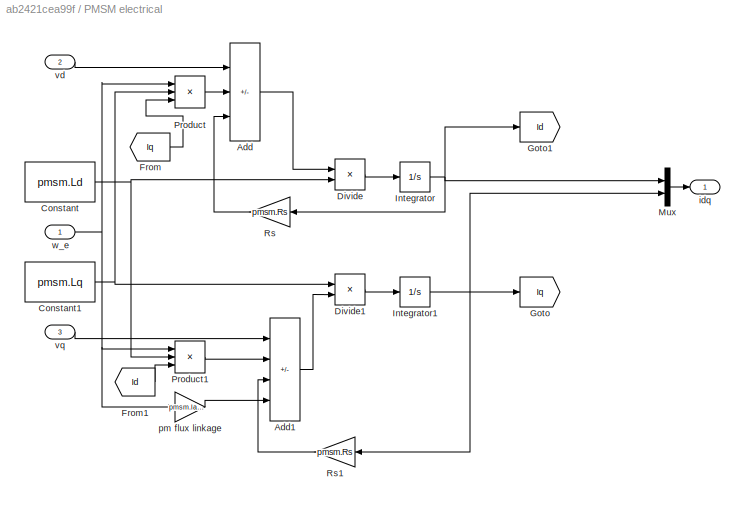
BLOCK [SubSystem] PMSM electrical
BLOCK [Sum] PMSM electrical/Add
  IconShape = rectangular
  Inputs = ++-
BLOCK [Sum] PMSM electrical/Add1
  IconShape = rectangular
  Inputs = +---
BLOCK [Constant] PMSM electrical/Constant
  Value = pmsm.Ld
BLOCK [Constant] PMSM electrical/Constant1
  Value = pmsm.Lq
BLOCK [Product] PMSM electrical/Divide
  Inputs = */
BLOCK [Product] PMSM electrical/Divide1
  Inputs = /*
BLOCK [From] PMSM electrical/From
  GotoTag = Iq
BLOCK [From] PMSM electrical/From1
  GotoTag = Id
BLOCK [Goto] PMSM electrical/Goto
  GotoTag = Iq
BLOCK [Goto] PMSM electrical/Goto1
  GotoTag = Id
BLOCK [Integrator] PMSM electrical/Integrator
BLOCK [Integrator] PMSM electrical/Integrator1
BLOCK [Mux] PMSM electrical/Mux
  DisplayOption = bar
  Inputs = 2
BLOCK [Product] PMSM electrical/Product
  Inputs = 3
BLOCK [Product] PMSM electrical/Product1
  Inputs = 3
BLOCK [Gain] PMSM electrical/Rs
  Gain = pmsm.Rs
  NameLocation = top
BLOCK [Gain] PMSM electrical/Rs1
  Gain = pmsm.Rs
  NameLocation = top
BLOCK [Outport] PMSM electrical/idq
BLOCK [Gain] PMSM electrical/pm flux linkage
  Gain = pmsm.lambda_pm
BLOCK [Inport] PMSM electrical/vd
  Port = 2
BLOCK [Inport] PMSM electrical/vq
  Port = 3
BLOCK [Inport] PMSM electrical/w_e
BLOCK [SubSystem] PMSM em torque
BLOCK [Constant] PMSM em torque/Constant
  Value = pmsm.Ld
BLOCK [Constant] PMSM em torque/Constant1
  Value = pmsm.Lq
BLOCK [Demux] PMSM em torque/Demux
  Outputs = 2
BLOCK [Gain] PMSM em torque/Gain2
  Gain = 3*pmsm.pp/2
BLOCK [Gain] PMSM em torque/PM flux linkage
  Gain = pmsm.lambda_pm
BLOCK [Product] PMSM em torque/Product
  Inputs = 3
BLOCK [Sum] PMSM em torque/Sum
  Inputs = |++
BLOCK [Sum] PMSM em torque/Sum1
  Inputs = |+-
BLOCK [Outport] PMSM em torque/T_em
  VectorParamsAs1DForOutWhenUnconnected = off
BLOCK [Inport] PMSM em torque/idq
BLOCK [SubSystem] PMSM mechanical
BLOCK [Sum] PMSM mechanical/Add
  IconShape = rectangular
  Inputs = +---
BLOCK [Constant] PMSM mechanical/Constant
  Value = pmsm.J
BLOCK [Product] PMSM mechanical/Divide
  Inputs = */
BLOCK [Gain] PMSM mechanical/Gain
  Gain = pmsm.b
  NameLocation = top
BLOCK [Integrator] PMSM mechanical/Integrator
BLOCK [Product] PMSM mechanical/Product
BLOCK [Inport] PMSM mechanical/T_disturb
  Port = 3
BLOCK [Inport] PMSM mechanical/T_em
BLOCK [Inport] PMSM mechanical/T_load
  Port = 2
BLOCK [Outport] PMSM mechanical/a_mech
  Port = 2
BLOCK [Outport] PMSM mechanical/p_mech
  Port = 3
BLOCK [Outport] PMSM mechanical/w_mech
BLOCK [Product] Product
  NameLocation = top
BLOCK [RadioButtonGroup] Radio Button
  ButtonGroupName = Group
  SelectedLabel = Dynamic scheduling
BLOCK [RadioButtonGroup] Radio Button1
  ButtonGroupName = Group
  SelectedLabel = Dynamic scheduling
BLOCK [RadioButtonGroup] Radio Button2
  ButtonGroupName = Group
  SelectedLabel = Friction load
BLOCK [RadioButtonGroup] Radio Button3
  ButtonGroupName = Group
  SelectedLabel = TRQ dynamic request
BLOCK [RadioButtonGroup] Radio Button4
  ButtonGroupName = Group
  SelectedLabel = SPEED dynamic request
BLOCK [RateLimiter] Rate Limiter
  FallingSlewLimit = -foc.slew_speed
  RisingSlewLimit = foc.slew_speed
  SampleTimeMode = inherited
BLOCK [RateLimiter] Rate Limiter2
  FallingSlewLimit = -foc.slew_torque
  RisingSlewLimit = foc.slew_torque
  SampleTimeMode = inherited
BLOCK [RateTransition] Rate Transition2
  AttributesFormatString = %<OutPortSampleTime>
  OutPortSampleTime = foc.Ts_c
BLOCK [RateTransition] Rate Transition3
  AttributesFormatString = %<OutPortSampleTime>
  OutPortSampleTime = foc.Ts_s
BLOCK [RateTransition] Rate Transition5
  AttributesFormatString = %<OutPortSampleTime>
  NameLocation = left
  OutPortSampleTime = foc.Ts_c
BLOCK [RateTransition] Rate Transition6
  AttributesFormatString = %<OutPortSampleTime>
  NameLocation = top
  OutPortSampleTime = foc.Ts_s
BLOCK [Saturate] Saturation1
  LowerLimit = -fw.vs_max
  UpperLimit = fw.vs_max
BLOCK [Saturate] Saturation2
  LowerLimit = -fw.trq_max
  UpperLimit = fw.trq_max
BLOCK [Saturate] Saturation3
  LowerLimit = -fw.trq_max
  UpperLimit = fw.trq_max
BLOCK [Saturate] Saturation4
  LowerLimit = -fw.vs_max
  UpperLimit = fw.vs_max
BLOCK [Saturate] Saturation6
  LowerLimit = -pmsm.n_rat
  UpperLimit = pmsm.n_rat
BLOCK [Scope] Scope
  Floating = off
  NumInputPorts = 2
  ScopeSpecificationString = Simulink.scopes.TimeScopeBlockCfg('CurrentConfiguration', extmgr.ConfigurationSet(extmgr.Configuration('Core','General UI',true),extmgr.Configuration('Core','Source UI',true),extmgr.Configuration('Sources','WiredSimulink',true,'DataLoggingVariableName','ScopeData1'),extmgr.Configuration('Visuals','Time Domain',true,'SerializedDisplays',{struct('MinYLimReal','-18.21796','MaxYLimReal','28.76116','YL...<+1462ch>
BLOCK [Scope] Scope1
  Floating = off
  NumInputPorts = 2
  ScopeSpecificationString = Simulink.scopes.TimeScopeBlockCfg('CurrentConfiguration', extmgr.ConfigurationSet(extmgr.Configuration('Core','General UI',true),extmgr.Configuration('Core','Source UI',true),extmgr.Configuration('Sources','WiredSimulink',true,'DataLoggingVariableName','ScopeData2'),extmgr.Configuration('Visuals','Time Domain',true,'SerializedDisplays',{struct('MinYLimReal','-376.07883','MaxYLimReal','3375.11987',...<+1551ch>
BLOCK [Scope] Scope2
  Floating = off
  NumInputPorts = 1
  ScopeSpecificationString = Simulink.scopes.TimeScopeBlockCfg('CurrentConfiguration', extmgr.ConfigurationSet(extmgr.Configuration('Core','General UI',true),extmgr.Configuration('Core','Source UI',true),extmgr.Configuration('Sources','WiredSimulink',true,'DataLoggingVariableName','ScopeData3'),extmgr.Configuration('Visuals','Time Domain',true,'SerializedDisplays',{struct('MinYLimReal','-5.96483','MaxYLimReal','5.18699','YLab...<+1508ch>
BLOCK [Scope] Scope3
  Floating = off
  NumInputPorts = 3
  ScopeSpecificationString = Simulink.scopes.TimeScopeBlockCfg('CurrentConfiguration', extmgr.ConfigurationSet(extmgr.Configuration('Core','General UI',true),extmgr.Configuration('Core','Source UI',true),extmgr.Configuration('Sources','WiredSimulink',true,'DataLoggingVariableName','ScopeData4'),extmgr.Configuration('Visuals','Time Domain',true,'SerializedDisplays',{struct('MinYLimReal','-0.52791','MaxYLimReal','4.52559','YLab...<+1563ch>
BLOCK [Scope] Scope4
  Floating = off
  NumInputPorts = 2
  ScopeSpecificationString = Simulink.scopes.TimeScopeBlockCfg('CurrentConfiguration', extmgr.ConfigurationSet(extmgr.Configuration('Core','General UI',true),extmgr.Configuration('Core','Source UI',true),extmgr.Configuration('Sources','WiredSimulink',true),extmgr.Configuration('Visuals','Time Domain',true,'SerializedDisplays',{struct('MinYLimReal','-3.91863','MaxYLimReal','32.21862','YLabelReal','','MinYLimMag','0.00000','Max...<+1511ch>
BLOCK [Scope] Scope5
  Floating = off
  NumInputPorts = 2
  ScopeSpecificationString = Simulink.scopes.TimeScopeBlockCfg('CurrentConfiguration', extmgr.ConfigurationSet(extmgr.Configuration('Core','General UI',true),extmgr.Configuration('Core','Source UI',true),extmgr.Configuration('Sources','WiredSimulink',true,'DataLoggingVariableName','ScopeData5'),extmgr.Configuration('Visuals','Time Domain',true,'SerializedDisplays',{struct('MinYLimReal','-136.38156','MaxYLimReal','15.73535','Y...<+1445ch>
BLOCK [Scope] Scope6
  Floating = off
  NumInputPorts = 2
  ScopeSpecificationString = Simulink.scopes.TimeScopeBlockCfg('CurrentConfiguration', extmgr.ConfigurationSet(extmgr.Configuration('Core','General UI',true),extmgr.Configuration('Core','Source UI',true),extmgr.Configuration('Sources','WiredSimulink',true,'DataLoggingVariableName','ScopeData6'),extmgr.Configuration('Visuals','Time Domain',true,'SerializedDisplays',{struct('MinYLimReal','-15.64205','MaxYLimReal','11.83676','YL...<+1405ch>
BLOCK [Scope] Scope7
  Floating = off
  NumInputPorts = 1
  ScopeSpecificationString = Simulink.scopes.TimeScopeBlockCfg('CurrentConfiguration', extmgr.ConfigurationSet(extmgr.Configuration('Core','General UI',true),extmgr.Configuration('Core','Source UI',true),extmgr.Configuration('Sources','WiredSimulink',true,'DataLoggingVariableName','ScopeData7'),extmgr.Configuration('Visuals','Time Domain',true,'SerializedDisplays',{struct('MinYLimReal','-50.20495','MaxYLimReal','47.45262','YL...<+1442ch>
BLOCK [Scope] Scope8
  Floating = off
  IOType = viewer
  NumInputPorts = 1
  ScopeSpecificationString = Simulink.scopes.TimeScopeBlockCfg('CurrentConfiguration', extmgr.ConfigurationSet(extmgr.Configuration('Core','General UI',true),extmgr.Configuration('Core','Source UI',true),extmgr.Configuration('Sources','WiredSimulink',true,'DataLoggingVariableName','ScopeData1'),extmgr.Configuration('Visuals','Time Domain',true,'SerializedDisplays',{struct('MinYLimReal','-0.13889','MaxYLimReal','1.25','YLabelR...<+1682ch>
BLOCK [SignalSpecification] Signal Specification
  Unit = rad/s
BLOCK [SignalSpecification] Signal Specification1
  Unit = rpm
BLOCK [SignalSpecification] Signal Specification2
  Unit = rpm
BLOCK [SignalSpecification] Signal Specification3
  Unit = rad/s
BLOCK [SignalSpecification] Signal Specification5
  Unit = N*m
BLOCK [Step] Step
  After = load.trq_f
  NameLocation = right
  SampleTime = 0
BLOCK [Step] Step1
  After = fw.trq_max
  SampleTime = 0
BLOCK [Step] Step2
  After = load.trq_f
  NameLocation = right
  SampleTime = 0
BLOCK [Step] Step3
  After = load.J
  NameLocation = top
  SampleTime = 0
BLOCK [Step] Step4
  After = 440
  SampleTime = 0
BLOCK [Step] Step5
  After = 3
  SampleTime = 0
  Time = 2
BLOCK [Step] Step6
  After = -3
  SampleTime = 0
  Time = 2.05
BLOCK [SubSystem] Subsystem
BLOCK [Constant] Subsystem/Constant14
  OutDataTypeStr = single
  Value = 1.5*pmsm.pp*pmsm.lambda_pm
BLOCK [Product] Subsystem/Divide
  Inputs = */
BLOCK [Inport] Subsystem/Tem
BLOCK [Outport] Subsystem/iq_ref
BLOCK [Sum] Sum
  Inputs = |++
  NameLocation = top
BLOCK [Sum] Sum1
  Inputs = |++
BLOCK [Sum] Sum2
  Inputs = |++
BLOCK [Sum] Sum3
  Inputs = |+-
  NameLocation = top
BLOCK [Sum] Sum4
  Inputs = |+-
BLOCK [Sum] Sum5
  Inputs = |+-
BLOCK [Sum] Sum6
  Inputs = |++
BLOCK [Switch] Switch
  Criteria = u2 > Threshold
  InputSameDT = off
  SaturateOnIntegerOverflow = off
  Threshold = 1
BLOCK [Switch] Switch1
  Criteria = u2 > Threshold
  InputSameDT = off
  SaturateOnIntegerOverflow = off
BLOCK [Switch] Switch2
  Criteria = u2 > Threshold
  InputSameDT = off
  NameLocation = right
  SaturateOnIntegerOverflow = off
BLOCK [Switch] Switch3
  Criteria = u2 > Threshold
  InputSameDT = off
  SaturateOnIntegerOverflow = off
BLOCK [Switch] Switch4
  Criteria = u2 > Threshold
  InputSameDT = off
  SaturateOnIntegerOverflow = off
BLOCK [Switch] Switch5
  Criteria = u2 > Threshold
  InputSameDT = off
  SaturateOnIntegerOverflow = off
BLOCK [ToggleSwitchBlock] Toggle Switch
BLOCK [ToggleSwitchBlock] Toggle Switch1
BLOCK [SubSystem] Tuned PI gains
BLOCK [SubSystem] Tuned PI gains speed
BLOCK [Constant] Tuned PI gains speed/Constant
  Value = foc.Kpw
BLOCK [Constant] Tuned PI gains speed/Constant1
  Value = foc.Kiw
BLOCK [Outport] Tuned PI gains speed/Kiw
  Port = 2
BLOCK [Outport] Tuned PI gains speed/Kpw
BLOCK [Constant] Tuned PI gains/Constant
  Value = foc.Kpd
BLOCK [Constant] Tuned PI gains/Constant1
  Value = foc.Kpq
BLOCK [Constant] Tuned PI gains/Constant2
  Value = foc.Kid
BLOCK [Constant] Tuned PI gains/Constant3
  Value = foc.Kiq
BLOCK [Outport] Tuned PI gains/Kid
  Port = 3
BLOCK [Outport] Tuned PI gains/Kiq
  Port = 4
BLOCK [Outport] Tuned PI gains/Kpd
BLOCK [Outport] Tuned PI gains/Kpq
  Port = 2
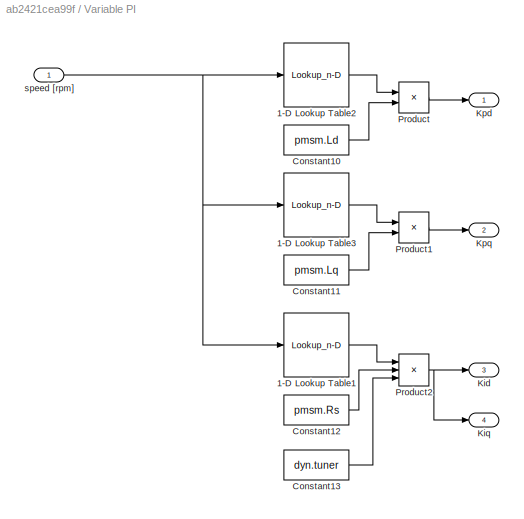
BLOCK [SubSystem] Variable PI 
BLOCK [Lookup_n-D] Variable PI /1-D Lookup Table1
  BreakpointsForDimension1 = dyn.speedVec_rpm
  InputPortMap = u0
  InternalRulePriority = Speed
  NumberOfTableDimensions = 1
  RndMeth = Simplest
  Table = dyn.bwVec_i_radps
BLOCK [Lookup_n-D] Variable PI /1-D Lookup Table2
  BreakpointsForDimension1 = dyn.speedVec_rpm
  InputPortMap = u0
  InternalRulePriority = Speed
  NumberOfTableDimensions = 1
  RndMeth = Simplest
  Table = dyn.bwVec_i_radps
BLOCK [Lookup_n-D] Variable PI /1-D Lookup Table3
  BreakpointsForDimension1 = dyn.speedVec_rpm
  InputPortMap = u0
  InternalRulePriority = Speed
  NumberOfTableDimensions = 1
  RndMeth = Simplest
  Table = dyn.bwVec_i_radps
BLOCK [Constant] Variable PI /Constant10
  Value = pmsm.Ld
BLOCK [Constant] Variable PI /Constant11
  Value = pmsm.Lq
BLOCK [Constant] Variable PI /Constant12
  Value = pmsm.Rs
BLOCK [Constant] Variable PI /Constant13
  Value = dyn.tuner
BLOCK [Outport] Variable PI /Kid
  Port = 3
BLOCK [Outport] Variable PI /Kiq
  Port = 4
BLOCK [Outport] Variable PI /Kpd
BLOCK [Outport] Variable PI /Kpq
  Port = 2
BLOCK [Product] Variable PI /Product
BLOCK [Product] Variable PI /Product1
BLOCK [Product] Variable PI /Product2
  Inputs = 3
BLOCK [Inport] Variable PI /speed [rpm]
BLOCK [SubSystem] Variable PI 1
BLOCK [Lookup_n-D] Variable PI 1/1-D Lookup Table1
  BreakpointsForDimension1 = dyn.speedVec_rpm
  InputPortMap = u0
  InternalRulePriority = Speed
  NumberOfTableDimensions = 1
  RndMeth = Simplest
  Table = dyn.bwVec_w_radps
BLOCK [Lookup_n-D] Variable PI 1/1-D Lookup Table2
  BreakpointsForDimension1 = dyn.speedVec_rpm
  InputPortMap = u0
  InternalRulePriority = Speed
  NumberOfTableDimensions = 1
  RndMeth = Simplest
  Table = dyn.bwVec_w_radps
BLOCK [Constant] Variable PI 1/Constant10
  Value = pmsm.J
BLOCK [Constant] Variable PI 1/Constant12
  Value = pmsm.b
BLOCK [Constant] Variable PI 1/Constant13
  Value = dyn.tuner
BLOCK [Outport] Variable PI 1/Kiw
  Port = 2
BLOCK [Outport] Variable PI 1/Kpw
BLOCK [Product] Variable PI 1/Product
BLOCK [Product] Variable PI 1/Product2
  Inputs = 3
BLOCK [Inport] Variable PI 1/speed [rpm]
BLOCK [Constant] Zero
  OutDataTypeStr = Inherit: Inherit via back propagation
  Value = 0
BLOCK [Constant] Zero1
  OutDataTypeStr = Inherit: Inherit via back propagation
  Value = 0
BLOCK [Constant] Zero2
  OutDataTypeStr = Inherit: Inherit via back propagation
  Value = 0
BLOCK [SubSystem] d-q decoupling
BLOCK [Constant] d-q decoupling/Constant2
  Value = pmsm.Lq
BLOCK [Constant] d-q decoupling/Constant3
  Value = pmsm.Ld
BLOCK [Constant] d-q decoupling/Constant4
  Value = pmsm.lambda_pm
BLOCK [Gain] d-q decoupling/Gain
  Gain = -1
BLOCK [Product] d-q decoupling/Product
  Inputs = 3
BLOCK [Product] d-q decoupling/Product1
  Inputs = 3
BLOCK [Product] d-q decoupling/Product5
BLOCK [Sum] d-q decoupling/Sum2
BLOCK [Inport] d-q decoupling/id
BLOCK [Inport] d-q decoupling/iq
  Port = 2
BLOCK [Outport] d-q decoupling/vdFF
  VectorParamsAs1DForOutWhenUnconnected = off
BLOCK [Outport] d-q decoupling/vqFF
  Port = 2
  VectorParamsAs1DForOutWhenUnconnected = off
BLOCK [Inport] d-q decoupling/w_e
  Port = 3
BLOCK [SubSystem] from300-1300 
  ClipboardFcn = sigbuilder_block('clipboard');
  CloseFcn = sigbuilder_block('close');
  ContinueFcn = sigbuilder_block('continue')
  CopyFcn = sigbuilder_block('copy');
  DeleteFcn = sigbuilder_block('delete');
  LoadFcn = sigbuilder_block('load');
  MaskHideContents = on
  ModelCloseFcn = sigbuilder_block('modelClose');
  NameChangeFcn = sigbuilder_block('namechange');
  OpenFcn = sigbuilder_block('open',[6 6 948 470.25 ]);
  PauseFcn = sigbuilder_block('pause')
  PreSaveFcn = sigbuilder_block('preSave');
  StartFcn = sigbuilder_block('start');
  StopFcn = sigbuilder_block('stop');
  Tag = STV Subsys
BLOCK [Demux] from300-1300 /Demux
  DisplayOption = none
  Outputs = 1
  Tag = STV Demux
BLOCK [FromWorkspace] from300-1300 /FromWs
  Tag = STV FromWs
  VariableName = tuvar
BLOCK [Outport] from300-1300 /n
  Tag = STV Outport
  VectorParamsAs1DForOutWhenUnconnected = off
BLOCK [SubSystem] from300-1300 2
  ClipboardFcn = sigbuilder_block('clipboard');
  CloseFcn = sigbuilder_block('close');
  ContinueFcn = sigbuilder_block('continue')
  CopyFcn = sigbuilder_block('copy');
  DeleteFcn = sigbuilder_block('delete');
  LoadFcn = sigbuilder_block('load');
  MaskHideContents = on
  ModelCloseFcn = sigbuilder_block('modelClose');
  NameChangeFcn = sigbuilder_block('namechange');
  OpenFcn = sigbuilder_block('open',[6 46.2 948 430.05 ]);
  PauseFcn = sigbuilder_block('pause')
  PreSaveFcn = sigbuilder_block('preSave');
  StartFcn = sigbuilder_block('start');
  StopFcn = sigbuilder_block('stop');
  Tag = STV Subsys
BLOCK [Demux] from300-1300 2/Demux
  DisplayOption = none
  Outputs = 1
  Tag = STV Demux
BLOCK [FromWorkspace] from300-1300 2/FromWs
  Tag = STV FromWs
  VariableName = tuvar
BLOCK [Outport] from300-1300 2/Trq
  Tag = STV Outport
  VectorParamsAs1DForOutWhenUnconnected = off
ANNOTATION (root): FIELD WEAKENING
ANNOTATION (root): Load
ANNOTATION (root): PI tuning SPEED
ANNOTATION (root): PI tuning TORQUE
ANNOTATION (root): Speed request
ANNOTATION (root): Torque request
ANNOTATION (root): load disturbance
ANNOTATION (root): <copyright redacted>
ANNOTATION (root): control mode
ANNOTATION (root): AC phase voltages and currents
ANNOTATION (root): Current FOC loop
ANNOTATION (root): Dashboard
ANNOTATION (root): Electrical Plant
ANNOTATION (root): Field Weakening Control
ANNOTATION (root): GAIN SCHEDULING
ANNOTATION (root): Id Iq
ANNOTATION (root): Load disturbance
ANNOTATION (root): Mechanical Plant
ANNOTATION (root): Speed
ANNOTATION (root): Speed FOC loop
ANNOTATION (root): Torque
ANNOTATION (root): Torque estimator
ANNOTATION (root): Vd Vq
LINE 2-D Lookup Table1:1 -> Goto21:1
LINE 2-D Lookup Table:1 -> Goto20:1
LINE CONTROL MODE:1 -> Switch:2
LINE Constant1:1 -> Switch2:2
LINE Constant3:1 -> Mux3:3
LINE Constant4:1 -> Switch1:2
LINE Constant6:1 -> Multiport Switch2:1
LINE Constant7:1 -> Multiport Switch2:2
LINE Constant9:1 -> Switch4:2
LINE Constant:1 -> Mux2:3
LINE Demux1:1 -> Goto2:1
LINE Demux1:2 -> Goto3:1
LINE Demux1:3 -> Goto4:1
LINE Demux1:4 -> Goto5:1
LINE Demux2:1 -> Goto18:1
LINE Demux2:2 -> Goto19:1
NET Demux:1 -> Goto17:1, Sum4:2
NET Demux:2 -> Goto1:1, Sum3:2
LINE Dynamic PI current:1 -> Multiport Switch:1
LINE Dynamic PI speed:1 -> Multiport Switch1:1
LINE From10:1 -> Scope1:1
LINE From11:1 -> Scope3:1
LINE From12:1 -> Scope4:2
LINE From13:1 -> Scope4:1
LINE From14:1 -> Scope5:1
LINE From15:1 -> Scope5:2
LINE From16:1 -> Scope6:1
LINE From17:1 -> Scope6:2
LINE From18:1 -> Inverse Park Transform1:2
LINE From19:1 -> Mux3:1
LINE From1:1 -> Scope:2
LINE From20:1 -> Mux3:2
LINE From21:1 -> Mux2:1
LINE From22:1 -> Mux2:2
LINE From23:1 -> Variable PI 1:1
LINE From24:1 -> PID Controller4:2
LINE From25:1 -> PID Controller4:3
NET From26:1 -> 2-D Lookup Table1:1, 2-D Lookup Table:1
LINE From27:1 -> Scope3:3
NET From28:1 -> 2-D Lookup Table1:2, 2-D Lookup Table:2
LINE From29:1 -> Switch5:1
LINE From2:1 -> PI Iq:2
LINE From30:1 -> Switch3:1
LINE From3:1 -> PI Id:2
LINE From4:1 -> Variable PI :1
LINE From5:1 -> Scope1:2
LINE From6:1 -> Scope3:2
LINE From7:1 -> PI Iq:3
LINE From8:1 -> PI Id:3
LINE From9:1 -> Inverse Park Transform:2
LINE From:1 -> Scope:1
NET Gain1:1 -> Integrator:1, PMSM electrical:1, Sum5:2, d-q decoupling:3
LINE Gain4:1 -> Signal Specification1:1
LINE Gain5:1 -> Signal Specification3:1
LINE Gain:1 -> Switch4:1
LINE Integrator:1 -> Goto11:1
LINE Inverse Park Transform1:1 -> Scope7:1
LINE Inverse Park Transform:1 -> Scope2:1
LINE Multiport Switch1:1 -> Demux2:1
NET Multiport Switch2:1 -> Goto9:1, PMSM mechanical:2
LINE Multiport Switch:1 -> Demux1:1
LINE Mux1:1 -> Multiport Switch:4
LINE Mux2:1 -> Inverse Park Transform:1
LINE Mux3:1 -> Inverse Park Transform1:1
LINE Mux4:1 -> Multiport Switch1:3
LINE Mux5:1 -> Multiport Switch1:4
LINE Mux6:1 -> Multiport Switch:2
LINE Mux7:1 -> Multiport Switch1:2
LINE Mux:1 -> Multiport Switch:3
LINE Original PI gains speed/Constant1:1 -> Original PI gains speed/Kiw:1
LINE Original PI gains speed/Constant:1 -> Original PI gains speed/Kpw:1
LINE Original PI gains speed:1 -> Mux7:1
LINE Original PI gains speed:2 -> Mux7:2
LINE Original PI gains/Constant1:1 -> Original PI gains/Kpq:1
LINE Original PI gains/Constant2:1 -> Original PI gains/Kid:1
LINE Original PI gains/Constant3:1 -> Original PI gains/Kiq:1
LINE Original PI gains/Constant:1 -> Original PI gains/Kpd:1
LINE Original PI gains:1 -> Mux6:1
LINE Original PI gains:2 -> Mux6:2
LINE Original PI gains:3 -> Mux6:3
LINE Original PI gains:4 -> Mux6:4
NET PI Id:1 -> Goto14:1, Saturation1:1
NET PI Iq:1 -> Goto15:1, Saturation4:1
LINE PID Controller4:1 -> Saturation2:1
LINE PMSM electrical/Add1:1 -> PMSM electrical/Divide1:2
LINE PMSM electrical/Add:1 -> PMSM electrical/Divide:1
NET PMSM electrical/Constant1:1 -> PMSM electrical/Divide1:1, PMSM electrical/Product:2
NET PMSM electrical/Constant:1 -> PMSM electrical/Divide:2, PMSM electrical/Product1:2
LINE PMSM electrical/Divide1:1 -> PMSM electrical/Integrator1:1
LINE PMSM electrical/Divide:1 -> PMSM electrical/Integrator:1
LINE PMSM electrical/From1:1 -> PMSM electrical/Product1:3
LINE PMSM electrical/From:1 -> PMSM electrical/Product:3
NET PMSM electrical/Integrator1:1 -> PMSM electrical/Goto:1, PMSM electrical/Mux:2, PMSM electrical/Rs1:1
NET PMSM electrical/Integrator:1 -> PMSM electrical/Goto1:1, PMSM electrical/Mux:1, PMSM electrical/Rs:1
LINE PMSM electrical/Mux:1 -> PMSM electrical/idq:1
LINE PMSM electrical/Product1:1 -> PMSM electrical/Add1:2
LINE PMSM electrical/Product:1 -> PMSM electrical/Add:2
LINE PMSM electrical/Rs1:1 -> PMSM electrical/Add1:3
LINE PMSM electrical/Rs:1 -> PMSM electrical/Add:3
LINE PMSM electrical/pm flux linkage:1 -> PMSM electrical/Add1:4
LINE PMSM electrical/vd:1 -> PMSM electrical/Add:1
LINE PMSM electrical/vq:1 -> PMSM electrical/Add1:1
NET PMSM electrical/w_e:1 -> PMSM electrical/Product1:1, PMSM electrical/Product:1, PMSM electrical/pm flux linkage:1
NET PMSM electrical:1 -> PMSM em torque:1, Rate Transition5:1
LINE PMSM em torque/Constant1:1 -> PMSM em torque/Sum1:2
LINE PMSM em torque/Constant:1 -> PMSM em torque/Sum1:1
LINE PMSM em torque/Demux:1 -> PMSM em torque/Product:2
NET PMSM em torque/Demux:2 -> PMSM em torque/PM flux linkage:1, PMSM em torque/Product:3
LINE PMSM em torque/Gain2:1 -> PMSM em torque/T_em:1
LINE PMSM em torque/PM flux linkage:1 -> PMSM em torque/Sum:2
LINE PMSM em torque/Product:1 -> PMSM em torque/Sum:1
LINE PMSM em torque/Sum1:1 -> PMSM em torque/Product:1
LINE PMSM em torque/Sum:1 -> PMSM em torque/Gain2:1
LINE PMSM em torque/idq:1 -> PMSM em torque/Demux:1
NET PMSM em torque:1 -> Goto7:1, PMSM mechanical:1
LINE PMSM mechanical/Add:1 -> PMSM mechanical/Divide:1
LINE PMSM mechanical/Constant:1 -> PMSM mechanical/Divide:2
NET PMSM mechanical/Divide:1 -> PMSM mechanical/Integrator:1, PMSM mechanical/a_mech:1
LINE PMSM mechanical/Gain:1 -> PMSM mechanical/Add:4
NET PMSM mechanical/Integrator:1 -> PMSM mechanical/Gain:1, PMSM mechanical/Product:2, PMSM mechanical/w_mech:1
LINE PMSM mechanical/Product:1 -> PMSM mechanical/p_mech:1
LINE PMSM mechanical/T_disturb:1 -> PMSM mechanical/Add:3
NET PMSM mechanical/T_em:1 -> PMSM mechanical/Add:1, PMSM mechanical/Product:1
LINE PMSM mechanical/T_load:1 -> PMSM mechanical/Add:2
NET PMSM mechanical:1 -> Rate Transition6:1, Signal Specification:1
LINE PMSM mechanical:2 -> Product:2
LINE Product:1 -> Sum:1
LINE Rate Limiter2:1 -> Saturation3:1
LINE Rate Limiter:1 -> Saturation6:1
LINE Rate Transition2:1 -> Signal Specification5:1
LINE Rate Transition3:1 -> Signal Specification2:1
LINE Rate Transition5:1 -> Demux:1
LINE Rate Transition6:1 -> Gain1:1
LINE Saturation1:1 -> Sum2:1
LINE Saturation2:1 -> Switch:3
LINE Saturation3:1 -> Switch:1
LINE Saturation4:1 -> Sum1:1
NET Saturation6:1 -> Gain5:1, Goto10:1
LINE Signal Specification1:1 -> Goto6:1
LINE Signal Specification2:1 -> Rate Limiter:1
LINE Signal Specification3:1 -> Sum5:1
LINE Signal Specification5:1 -> Rate Limiter2:1
LINE Signal Specification:1 -> Gain4:1
LINE Step1:1 -> Switch4:3
LINE Step2:1 -> Sum:2
LINE Step3:1 -> Product:1
LINE Step4:1 -> Switch1:3
LINE Step5:1 -> Sum6:1
LINE Step6:1 -> Sum6:2
LINE Step:1 -> Multiport Switch2:3
LINE Subsystem/Constant14:1 -> Subsystem/Divide:2
LINE Subsystem/Divide:1 -> Subsystem/iq_ref:1
LINE Subsystem/Tem:1 -> Subsystem/Divide:1
LINE Subsystem:1 -> Switch3:3
NET Sum1:1 -> Goto13:1, PMSM electrical:3
NET Sum2:1 -> Goto12:1, PMSM electrical:2
LINE Sum3:1 -> PI Iq:1
LINE Sum4:1 -> PI Id:1
LINE Sum5:1 -> PID Controller4:1
LINE Sum6:1 -> Switch2:1
LINE Sum:1 -> Multiport Switch2:4
LINE Switch1:1 -> Rate Transition3:1
LINE Switch2:1 -> PMSM mechanical:3
NET Switch3:1 -> Goto:1, Sum3:1, d-q decoupling:2
LINE Switch4:1 -> Rate Transition2:1
NET Switch5:1 -> Goto16:1, Sum4:1, d-q decoupling:1
NET Switch:1 -> Goto8:1, Subsystem:1
LINE Tuned PI gains speed/Constant1:1 -> Tuned PI gains speed/Kiw:1
LINE Tuned PI gains speed/Constant:1 -> Tuned PI gains speed/Kpw:1
LINE Tuned PI gains speed:1 -> Mux4:1
LINE Tuned PI gains speed:2 -> Mux4:2
LINE Tuned PI gains/Constant1:1 -> Tuned PI gains/Kpq:1
LINE Tuned PI gains/Constant2:1 -> Tuned PI gains/Kid:1
LINE Tuned PI gains/Constant3:1 -> Tuned PI gains/Kiq:1
LINE Tuned PI gains/Constant:1 -> Tuned PI gains/Kpd:1
LINE Tuned PI gains:1 -> Mux:1
LINE Tuned PI gains:2 -> Mux:2
LINE Tuned PI gains:3 -> Mux:3
LINE Tuned PI gains:4 -> Mux:4
LINE Variable PI /1-D Lookup Table1:1 -> Variable PI /Product2:1
LINE Variable PI /1-D Lookup Table2:1 -> Variable PI /Product:1
LINE Variable PI /1-D Lookup Table3:1 -> Variable PI /Product1:1
LINE Variable PI /Constant10:1 -> Variable PI /Product:2
LINE Variable PI /Constant11:1 -> Variable PI /Product1:2
LINE Variable PI /Constant12:1 -> Variable PI /Product2:2
LINE Variable PI /Constant13:1 -> Variable PI /Product2:3
LINE Variable PI /Product1:1 -> Variable PI /Kpq:1
NET Variable PI /Product2:1 -> Variable PI /Kid:1, Variable PI /Kiq:1
LINE Variable PI /Product:1 -> Variable PI /Kpd:1
NET Variable PI /speed [rpm]:1 -> Variable PI /1-D Lookup Table1:1, Variable PI /1-D Lookup Table2:1, Variable PI /1-D Lookup Table3:1
LINE Variable PI 1/1-D Lookup Table1:1 -> Variable PI 1/Product2:1
LINE Variable PI 1/1-D Lookup Table2:1 -> Variable PI 1/Product:1
LINE Variable PI 1/Constant10:1 -> Variable PI 1/Product:2
LINE Variable PI 1/Constant12:1 -> Variable PI 1/Product2:2
LINE Variable PI 1/Constant13:1 -> Variable PI 1/Product2:3
LINE Variable PI 1/Product2:1 -> Variable PI 1/Kiw:1
LINE Variable PI 1/Product:1 -> Variable PI 1/Kpw:1
NET Variable PI 1/speed [rpm]:1 -> Variable PI 1/1-D Lookup Table1:1, Variable PI 1/1-D Lookup Table2:1
LINE Variable PI 1:1 -> Mux5:1
LINE Variable PI 1:2 -> Mux5:2
LINE Variable PI :1 -> Mux1:1
LINE Variable PI :2 -> Mux1:2
LINE Variable PI :3 -> Mux1:3
LINE Variable PI :4 -> Mux1:4
NET Zero1:1 -> Switch3:2, Switch5:2
LINE Zero2:1 -> Switch5:3
LINE Zero:1 -> Switch2:3
LINE d-q decoupling/Constant2:1 -> d-q decoupling/Product:1
LINE d-q decoupling/Constant3:1 -> d-q decoupling/Product1:2
LINE d-q decoupling/Constant4:1 -> d-q decoupling/Product5:2
LINE d-q decoupling/Gain:1 -> d-q decoupling/Product:3
LINE d-q decoupling/Product1:1 -> d-q decoupling/Sum2:1
LINE d-q decoupling/Product5:1 -> d-q decoupling/Sum2:2
LINE d-q decoupling/Product:1 -> d-q decoupling/vdFF:1
LINE d-q decoupling/Sum2:1 -> d-q decoupling/vqFF:1
LINE d-q decoupling/id:1 -> d-q decoupling/Product1:1
LINE d-q decoupling/iq:1 -> d-q decoupling/Product:2
NET d-q decoupling/w_e:1 -> d-q decoupling/Gain:1, d-q decoupling/Product1:3, d-q decoupling/Product5:1
LINE d-q decoupling:1 -> Sum2:2
LINE d-q decoupling:2 -> Sum1:2
LINE from300-1300 /Demux:1 -> from300-1300 /n:1
LINE from300-1300 /FromWs:1 -> from300-1300 /Demux:1
LINE from300-1300 2/Demux:1 -> from300-1300 2/Trq:1
LINE from300-1300 2/FromWs:1 -> from300-1300 2/Demux:1
LINE from300-1300 2:1 -> Gain:1
LINE from300-1300 :1 -> Switch1:1
note: NET lines group one-source signal fan-out (src -> all destinations, sorted); 1:1 wires keep LINE
